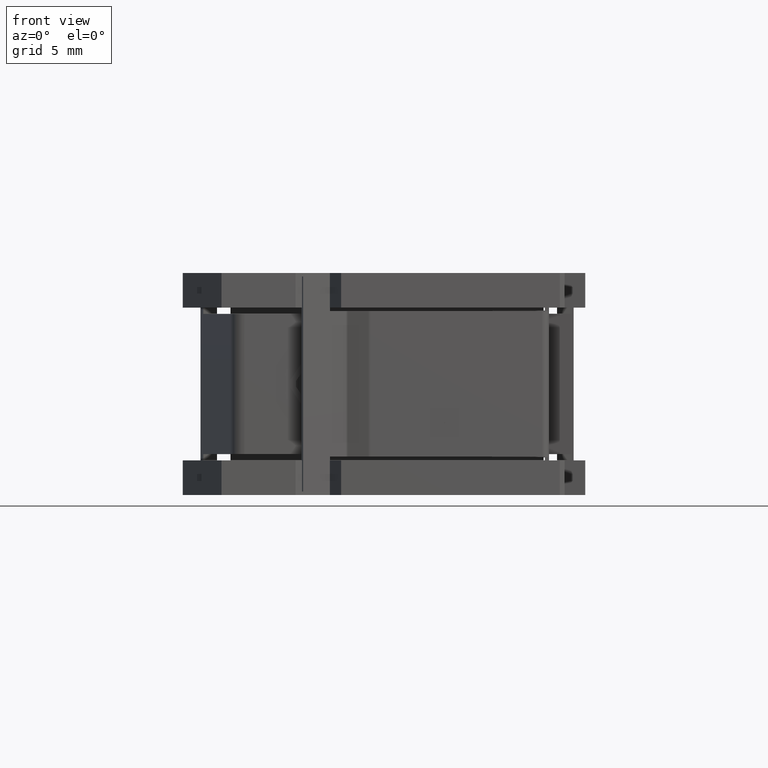
[diagram: clean part render]
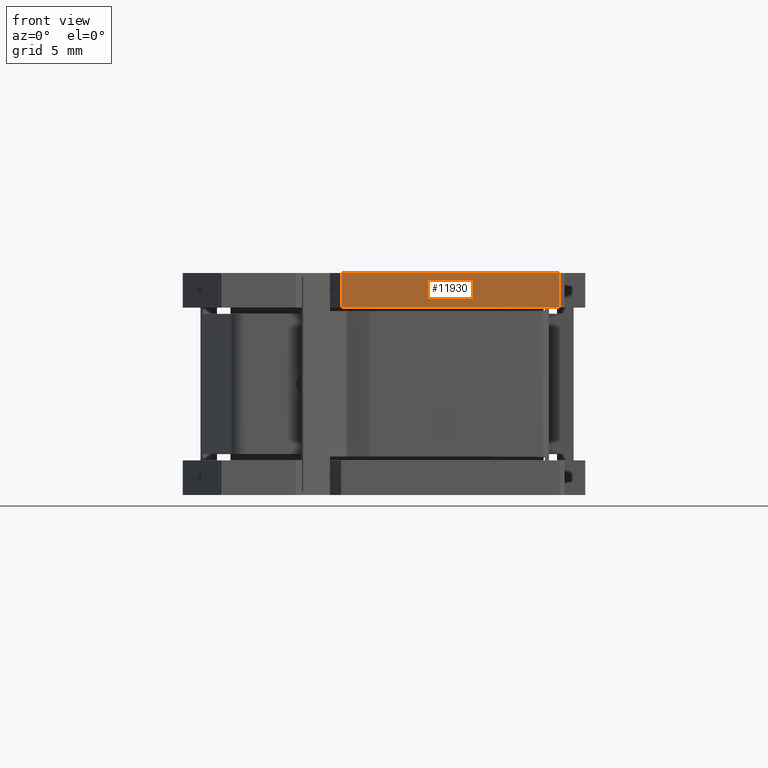
[diagram: same view with one face highlighted and labeled with its STEP entity id]
A machine part, front view. The second image highlights one B-rep face of the part: STEP entity #11930.
In plain terms, the highlighted planar face has unit normal (0, 1, 0).
Its self-contained STEP definition (entity closure, byte-faithful):
#1298 = VECTOR ( 'NONE', #1899, 1000.000000000000000 ) ;
#1365 = VECTOR ( 'NONE', #1996, 1000.000000000000000 ) ;
#1373 = VECTOR ( 'NONE', #2213, 1000.000000000000000 ) ;
#1418 = VECTOR ( 'NONE', #2188, 1000.000000000000000 ) ;
#1450 = AXIS2_PLACEMENT_3D ( 'NONE', #2646, #2649, #2650 ) ;
#1576 = FACE_OUTER_BOUND ( 'NONE', #9219, .T. ) ;
#1577 = PLANE ( 'NONE',  #1450 ) ;
#1701 = ORIENTED_EDGE ( 'NONE', *, *, #11869, .T. ) ;
#1716 = ORIENTED_EDGE ( 'NONE', *, *, #11814, .F. ) ;
#1718 = ORIENTED_EDGE ( 'NONE', *, *, #11789, .F. ) ;
#1719 = ORIENTED_EDGE ( 'NONE', *, *, #11871, .F. ) ;
#1899 = DIRECTION ( 'NONE',  ( -0.0000000000000000000, 0.0000000000000000000, -1.000000000000000000 ) ) ;
#1902 = CARTESIAN_POINT ( 'NONE',  ( 22.18927823012252900, -1.369000000010278200, 12.00000000000000000 ) ) ;
#1928 = LINE ( 'NONE', #1902, #1298 ) ;
#1996 = DIRECTION ( 'NONE',  ( 0.0000000000000000000, -0.0000000000000000000, 1.000000000000000000 ) ) ;
#1999 = CARTESIAN_POINT ( 'NONE',  ( 6.440703507310097100, -1.369000000010278200, 12.00000000000000000 ) ) ;
#2020 = LINE ( 'NONE', #1999, #1365 ) ;
#2131 = LINE ( 'NONE', #2157, #1373 ) ;
#2133 = LINE ( 'NONE', #2186, #1418 ) ;
#2157 = CARTESIAN_POINT ( 'NONE',  ( 0.6762782301292131800, -1.369000000010278700, 12.00000000000000000 ) ) ;
#2186 = CARTESIAN_POINT ( 'NONE',  ( -12.72331469668145400, -1.369000000010278700, 9.499999999999994700 ) ) ;
#2188 = DIRECTION ( 'NONE',  ( -1.000000000000000000, 3.217610781289461000E-033, -2.171974429317391200E-017 ) ) ;
#2213 = DIRECTION ( 'NONE',  ( -1.000000000000000000, 0.0000000000000000000, -0.0000000000000000000 ) ) ;
#2646 = CARTESIAN_POINT ( 'NONE',  ( 7.822759001598525300, -1.369000000010278200, 12.00000000000000000 ) ) ;
#2649 = DIRECTION ( 'NONE',  ( 0.0000000000000000000, 1.000000000000000000, 0.0000000000000000000 ) ) ;
#2650 = DIRECTION ( 'NONE',  ( 0.0000000000000000000, -0.0000000000000000000, 1.000000000000000000 ) ) ;
#2722 = CARTESIAN_POINT ( 'NONE',  ( 22.18927823012252900, -1.369000000010278000, 12.00000000000000200 ) ) ;
#8792 = CARTESIAN_POINT ( 'NONE',  ( 6.440703507310097100, -1.369000000010279500, 9.499999999999994700 ) ) ;
#8799 = CARTESIAN_POINT ( 'NONE',  ( 22.18927823012252900, -1.369000000010279300, 9.499999999999994700 ) ) ;
#8805 = CARTESIAN_POINT ( 'NONE',  ( 6.440703507310096200, -1.369000000010277600, 12.00000000000000000 ) ) ;
#9219 = EDGE_LOOP ( 'NONE', ( #1701, #1716, #1719, #1718 ) ) ;
#9698 = VERTEX_POINT ( 'NONE', #8805 ) ;
#9700 = VERTEX_POINT ( 'NONE', #8792 ) ;
#9703 = VERTEX_POINT ( 'NONE', #8799 ) ;
#9717 = VERTEX_POINT ( 'NONE', #2722 ) ;
#11789 = EDGE_CURVE ( 'NONE', #9717, #9703, #1928, .T. ) ;
#11814 = EDGE_CURVE ( 'NONE', #9700, #9698, #2020, .T. ) ;
#11869 = EDGE_CURVE ( 'NONE', #9717, #9698, #2131, .T. ) ;
#11871 = EDGE_CURVE ( 'NONE', #9703, #9700, #2133, .T. ) ;
#11930 = ADVANCED_FACE ( 'NONE', ( #1576 ), #1577, .F. ) ;